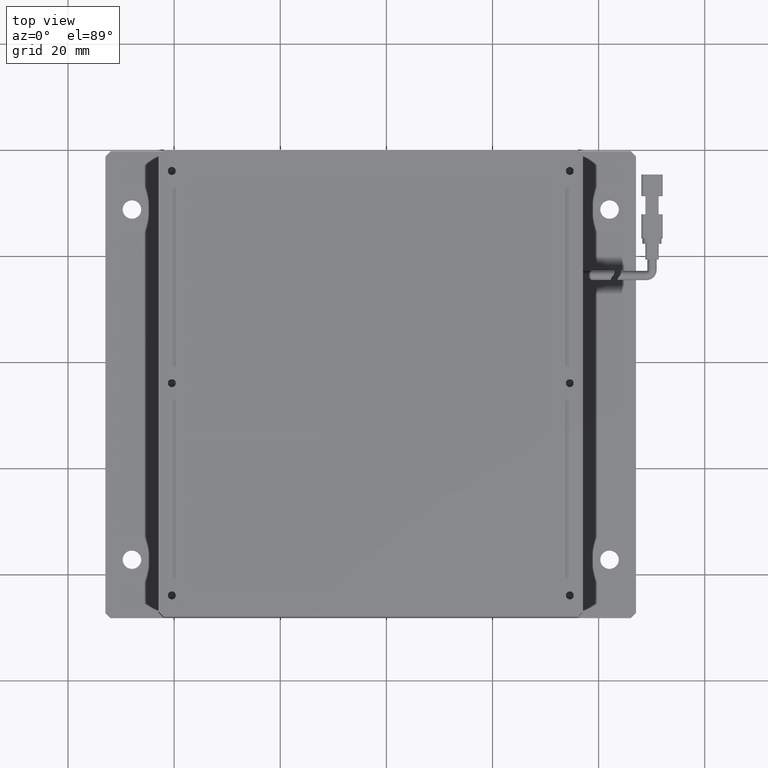
[diagram: clean part render]
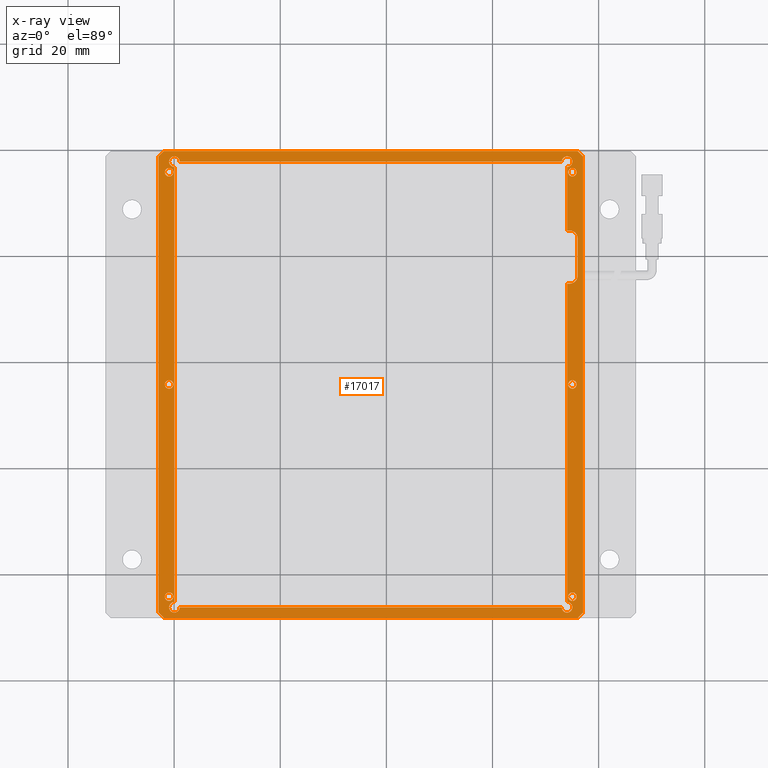
[diagram: x-ray — body ghosted, one internal face saturated and labeled with its STEP entity id]
A machine part, top view, then the same camera in x-ray: the body is ghosted and one INTERNAL B-rep face — a face not visible from any outside direction — is saturated and labeled: STEP entity #17017.
In plain terms, the highlighted planar face has unit normal (0, 0, -1).
Its self-contained STEP definition (entity closure, byte-faithful):
#6 = DIRECTION ( 'NONE',  ( -1.000000000000000000, 0.0000000000000000000, 0.0000000000000000000 ) ) ;
#13 = DIRECTION ( 'NONE',  ( 0.7071067811865408000, 0.7071067811865541200, 0.0000000000000000000 ) ) ;
#37 = ORIENTED_EDGE ( 'NONE', *, *, #16282, .T. ) ;
#207 = ORIENTED_EDGE ( 'NONE', *, *, #8562, .T. ) ;
#321 = AXIS2_PLACEMENT_3D ( 'NONE', #14789, #6678, #16154 ) ;
#440 = DIRECTION ( 'NONE',  ( -0.7071067811865524600, -0.7071067811865426900, 0.0000000000000000000 ) ) ;
#561 = FACE_BOUND ( 'NONE', #1685, .T. ) ;
#587 = EDGE_CURVE ( 'NONE', #7370, #11511, #15898, .T. ) ;
#638 = VERTEX_POINT ( 'NONE', #13165 ) ;
#668 = VERTEX_POINT ( 'NONE', #9595 ) ;
#693 = CARTESIAN_POINT ( 'NONE',  ( -20.94768995799924800, 35.79992363497524400, -4.547577592273199800E-012 ) ) ;
#763 = FACE_BOUND ( 'NONE', #10065, .T. ) ;
#903 = CARTESIAN_POINT ( 'NONE',  ( 55.85231004200074500, 35.79992363497521500, -4.547577592273199800E-012 ) ) ;
#965 = CARTESIAN_POINT ( 'NONE',  ( 55.05231004200074800, -4.200076365024778500, -4.547577592273199800E-012 ) ) ;
#984 = AXIS2_PLACEMENT_3D ( 'NONE', #2488, #12103, #3881 ) ;
#1182 = VERTEX_POINT ( 'NONE', #8970 ) ;
#1201 = EDGE_LOOP ( 'NONE', ( #13342, #13288 ) ) ;
#1450 = ORIENTED_EDGE ( 'NONE', *, *, #15912, .T. ) ;
#1503 = EDGE_CURVE ( 'NONE', #3686, #10969, #13608, .T. ) ;
#1515 = CIRCLE ( 'NONE', #13236, 0.7999999999999986000 ) ;
#1556 = DIRECTION ( 'NONE',  ( 1.000000000000000000, 0.0000000000000000000, 0.0000000000000000000 ) ) ;
#1558 = EDGE_CURVE ( 'NONE', #9867, #17127, #8316, .T. ) ;
#1561 = LINE ( 'NONE', #8660, #8903 ) ;
#1590 = CARTESIAN_POINT ( 'NONE',  ( -18.94768995799928700, 37.79992363497524400, -4.547577592273199800E-012 ) ) ;
#1629 = ORIENTED_EDGE ( 'NONE', *, *, #15548, .T. ) ;
#1654 = CARTESIAN_POINT ( 'NONE',  ( -19.94768995799928700, 37.79992363497522900, -4.547577592273199800E-012 ) ) ;
#1685 = EDGE_LOOP ( 'NONE', ( #16997, #6338 ) ) ;
#1730 = DIRECTION ( 'NONE',  ( -1.000000000000000000, 0.0000000000000000000, 0.0000000000000000000 ) ) ;
#1746 = AXIS2_PLACEMENT_3D ( 'NONE', #4868, #14387, #6286 ) ;
#1749 = LINE ( 'NONE', #13462, #8224 ) ;
#1873 = CARTESIAN_POINT ( 'NONE',  ( 57.05231004200075500, -47.20007636502479200, -4.547577592273199800E-012 ) ) ;
#2075 = DIRECTION ( 'NONE',  ( 0.0000000000000000000, 0.0000000000000000000, 1.000000000000000000 ) ) ;
#2088 = VERTEX_POINT ( 'NONE', #9095 ) ;
#2206 = EDGE_CURVE ( 'NONE', #17734, #9437, #16538, .T. ) ;
#2221 = CARTESIAN_POINT ( 'NONE',  ( 54.05231004200079100, 14.79992363497521200, -4.547577592273199800E-012 ) ) ;
#2231 = ORIENTED_EDGE ( 'NONE', *, *, #5478, .T. ) ;
#2235 = CARTESIAN_POINT ( 'NONE',  ( 54.55231004200074800, 24.79992363497521900, -4.547577592273199800E-012 ) ) ;
#2236 = CARTESIAN_POINT ( 'NONE',  ( 55.05231004200074800, -4.200076365024778500, -4.547577592273199800E-012 ) ) ;
#2261 = ORIENTED_EDGE ( 'NONE', *, *, #8304, .T. ) ;
#2352 = DIRECTION ( 'NONE',  ( -1.000000000000000000, 0.0000000000000000000, 0.0000000000000000000 ) ) ;
#2488 = CARTESIAN_POINT ( 'NONE',  ( -19.94768995799928700, 37.79992363497522900, -4.547577592273199800E-012 ) ) ;
#2519 = DIRECTION ( 'NONE',  ( -0.0000000000000000000, -1.000000000000000000, -0.0000000000000000000 ) ) ;
#2544 = EDGE_CURVE ( 'NONE', #3023, #6639, #9692, .T. ) ;
#2595 = CIRCLE ( 'NONE', #321, 1.500000000000001300 ) ;
#2679 = CARTESIAN_POINT ( 'NONE',  ( -19.94768995799928700, -45.20007636502478500, -4.547577592273199800E-012 ) ) ;
#2836 = VERTEX_POINT ( 'NONE', #7496 ) ;
#2903 = EDGE_CURVE ( 'NONE', #9688, #6274, #11561, .T. ) ;
#2958 = CARTESIAN_POINT ( 'NONE',  ( 56.05231004200076200, 39.79992363497522200, -4.548878634880182400E-012 ) ) ;
#3023 = VERTEX_POINT ( 'NONE', #16414 ) ;
#3026 = DIRECTION ( 'NONE',  ( -1.000000000000000000, 0.0000000000000000000, 0.0000000000000000000 ) ) ;
#3211 = LINE ( 'NONE', #3660, #6477 ) ;
#3341 = LINE ( 'NONE', #17768, #6600 ) ;
#3352 = EDGE_CURVE ( 'NONE', #1182, #638, #10694, .T. ) ;
#3382 = DIRECTION ( 'NONE',  ( -1.000000000000000000, 0.0000000000000000000, -0.0000000000000000000 ) ) ;
#3455 = LINE ( 'NONE', #1873, #15844 ) ;
#3482 = DIRECTION ( 'NONE',  ( 1.000000000000000000, -0.0000000000000000000, 0.0000000000000000000 ) ) ;
#3582 = VERTEX_POINT ( 'NONE', #15100 ) ;
#3622 = EDGE_CURVE ( 'NONE', #12047, #2836, #15523, .T. ) ;
#3660 = CARTESIAN_POINT ( 'NONE',  ( 54.05231004200079100, 39.79992363497522200, -4.547577592273199800E-012 ) ) ;
#3686 = VERTEX_POINT ( 'NONE', #2958 ) ;
#3841 = DIRECTION ( 'NONE',  ( -1.000000000000000000, 0.0000000000000000000, 0.0000000000000000000 ) ) ;
#3881 = DIRECTION ( 'NONE',  ( -1.000000000000000000, 0.0000000000000000000, 0.0000000000000000000 ) ) ;
#3891 = DIRECTION ( 'NONE',  ( 0.0000000000000000000, 0.0000000000000000000, 1.000000000000000000 ) ) ;
#3902 = CARTESIAN_POINT ( 'NONE',  ( -20.94768995799924800, -44.20007636502477800, -4.547577592273199800E-012 ) ) ;
#4087 = VERTEX_POINT ( 'NONE', #9102 ) ;
#4135 = CARTESIAN_POINT ( 'NONE',  ( 56.05231004200073400, -48.20007636502477800, -4.550179677487165000E-012 ) ) ;
#4230 = AXIS2_PLACEMENT_3D ( 'NONE', #1654, #11246, #3026 ) ;
#4260 = FACE_BOUND ( 'NONE', #6866, .T. ) ;
#4272 = CARTESIAN_POINT ( 'NONE',  ( -22.94768995799924500, -47.20007636502478500, -4.550179677487165000E-012 ) ) ;
#4363 = AXIS2_PLACEMENT_3D ( 'NONE', #5155, #14650, #6543 ) ;
#4449 = FACE_BOUND ( 'NONE', #10259, .T. ) ;
#4498 = EDGE_CURVE ( 'NONE', #8258, #7416, #1561, .T. ) ;
#4577 = ORIENTED_EDGE ( 'NONE', *, *, #13868, .T. ) ;
#4703 = AXIS2_PLACEMENT_3D ( 'NONE', #6835, #16304, #8206 ) ;
#4716 = LINE ( 'NONE', #17191, #11534 ) ;
#4752 = ORIENTED_EDGE ( 'NONE', *, *, #587, .T. ) ;
#4868 = CARTESIAN_POINT ( 'NONE',  ( -19.94768995799928700, -46.20007636502478500, -4.547577592273199800E-012 ) ) ;
#5105 = DIRECTION ( 'NONE',  ( 0.0000000000000000000, 0.0000000000000000000, 1.000000000000000000 ) ) ;
#5128 = EDGE_CURVE ( 'NONE', #10922, #13178, #9700, .T. ) ;
#5155 = CARTESIAN_POINT ( 'NONE',  ( 55.05231004200074800, 35.79992363497521500, -4.547577592273199800E-012 ) ) ;
#5164 = DIRECTION ( 'NONE',  ( 0.0000000000000000000, 0.0000000000000000000, 1.000000000000000000 ) ) ;
#5180 = VECTOR ( 'NONE', #1556, 1000.000000000000000 ) ;
#5442 = EDGE_CURVE ( 'NONE', #10620, #8994, #13282, .T. ) ;
#5466 = VERTEX_POINT ( 'NONE', #9318 ) ;
#5478 = EDGE_CURVE ( 'NONE', #4087, #9867, #12861, .T. ) ;
#5498 = DIRECTION ( 'NONE',  ( -1.000000000000000000, -6.938893903907222100E-015, 0.0000000000000000000 ) ) ;
#5625 = DIRECTION ( 'NONE',  ( 0.0000000000000000000, 0.0000000000000000000, 1.000000000000000000 ) ) ;
#5735 = CIRCLE ( 'NONE', #17704, 0.7999999999999951600 ) ;
#5778 = DIRECTION ( 'NONE',  ( 0.0000000000000000000, 0.0000000000000000000, 1.000000000000000000 ) ) ;
#5867 = DIRECTION ( 'NONE',  ( -0.0000000000000000000, 1.000000000000000000, 0.0000000000000000000 ) ) ;
#5976 = ORIENTED_EDGE ( 'NONE', *, *, #3622, .T. ) ;
#6274 = VERTEX_POINT ( 'NONE', #11501 ) ;
#6286 = DIRECTION ( 'NONE',  ( -1.000000000000000000, 0.0000000000000000000, 0.0000000000000000000 ) ) ;
#6335 = LINE ( 'NONE', #8612, #9930 ) ;
#6338 = ORIENTED_EDGE ( 'NONE', *, *, #8012, .T. ) ;
#6411 = EDGE_CURVE ( 'NONE', #12683, #2088, #14686, .T. ) ;
#6448 = DIRECTION ( 'NONE',  ( 0.0000000000000000000, 0.0000000000000000000, 1.000000000000000000 ) ) ;
#6477 = VECTOR ( 'NONE', #9149, 1000.000000000000000 ) ;
#6479 = EDGE_CURVE ( 'NONE', #17167, #668, #16174, .T. ) ;
#6511 = VECTOR ( 'NONE', #3382, 1000.000000000000000 ) ;
#6543 = DIRECTION ( 'NONE',  ( -1.000000000000000000, 0.0000000000000000000, 0.0000000000000000000 ) ) ;
#6600 = VECTOR ( 'NONE', #13, 1000.000000000000100 ) ;
#6621 = CIRCLE ( 'NONE', #10478, 1.000000000000000900 ) ;
#6639 = VERTEX_POINT ( 'NONE', #1590 ) ;
#6678 = DIRECTION ( 'NONE',  ( 0.0000000000000000000, 0.0000000000000000000, 1.000000000000000000 ) ) ;
#6768 = ORIENTED_EDGE ( 'NONE', *, *, #1558, .T. ) ;
#6835 = CARTESIAN_POINT ( 'NONE',  ( 54.55231004200074800, 16.29992363497521200, -4.547577592273199800E-012 ) ) ;
#6866 = EDGE_LOOP ( 'NONE', ( #9486, #15218 ) ) ;
#6947 = EDGE_CURVE ( 'NONE', #13178, #10922, #16136, .T. ) ;
#6950 = EDGE_CURVE ( 'NONE', #9437, #17734, #5735, .T. ) ;
#7112 = ORIENTED_EDGE ( 'NONE', *, *, #15972, .T. ) ;
#7370 = VERTEX_POINT ( 'NONE', #7563 ) ;
#7416 = VERTEX_POINT ( 'NONE', #11754 ) ;
#7496 = CARTESIAN_POINT ( 'NONE',  ( 54.05231004200079100, -45.20007636502478500, -4.547577592273199800E-012 ) ) ;
#7563 = CARTESIAN_POINT ( 'NONE',  ( 56.05231004200074800, 16.29992363497521200, -4.547577592273199800E-012 ) ) ;
#7572 = EDGE_CURVE ( 'NONE', #8994, #14546, #1749, .T. ) ;
#7620 = ORIENTED_EDGE ( 'NONE', *, *, #2544, .T. ) ;
#7728 = EDGE_CURVE ( 'NONE', #12373, #17167, #3455, .T. ) ;
#7775 = VECTOR ( 'NONE', #10729, 1000.000000000000000 ) ;
#7780 = CARTESIAN_POINT ( 'NONE',  ( -20.94768995799924800, -44.20007636502477800, -4.547577592273199800E-012 ) ) ;
#7805 = CARTESIAN_POINT ( 'NONE',  ( -19.94768995799928700, -46.20007636502478500, -4.547577592273199800E-012 ) ) ;
#7808 = CIRCLE ( 'NONE', #4703, 1.500000000000001300 ) ;
#7857 = PLANE ( 'NONE',  #12225 ) ;
#7961 = FACE_BOUND ( 'NONE', #1201, .T. ) ;
#7965 = CARTESIAN_POINT ( 'NONE',  ( -20.94768995799924800, -4.200076365024778500, -4.547577592273199800E-012 ) ) ;
#7981 = CARTESIAN_POINT ( 'NONE',  ( -22.94768995799924800, 39.79992363497522200, -4.547577592273199800E-012 ) ) ;
#8012 = EDGE_CURVE ( 'NONE', #16520, #14777, #11570, .T. ) ;
#8075 = CIRCLE ( 'NONE', #16588, 0.7999999999999986000 ) ;
#8090 = DIRECTION ( 'NONE',  ( 0.0000000000000000000, 0.0000000000000000000, 1.000000000000000000 ) ) ;
#8106 = CIRCLE ( 'NONE', #1746, 0.9999999999999974500 ) ;
#8206 = DIRECTION ( 'NONE',  ( 1.000000000000000000, 0.0000000000000000000, 0.0000000000000000000 ) ) ;
#8224 = VECTOR ( 'NONE', #9454, 1000.000000000000000 ) ;
#8258 = VERTEX_POINT ( 'NONE', #4272 ) ;
#8289 = AXIS2_PLACEMENT_3D ( 'NONE', #7965, #17419, #9317 ) ;
#8304 = EDGE_CURVE ( 'NONE', #12377, #5466, #8817, .T. ) ;
#8316 = LINE ( 'NONE', #10353, #11464 ) ;
#8352 = DIRECTION ( 'NONE',  ( 0.0000000000000000000, 0.0000000000000000000, 1.000000000000000000 ) ) ;
#8420 = CARTESIAN_POINT ( 'NONE',  ( 53.05231004200079100, -46.20007636502479200, -4.547577592273199800E-012 ) ) ;
#8540 = ORIENTED_EDGE ( 'NONE', *, *, #6479, .T. ) ;
#8562 = EDGE_CURVE ( 'NONE', #2088, #12047, #4716, .T. ) ;
#8612 = CARTESIAN_POINT ( 'NONE',  ( 57.05231004200075500, -48.20007636502477800, -4.547577592273199800E-012 ) ) ;
#8640 = DIRECTION ( 'NONE',  ( -0.7071067811865474600, 0.7071067811865474600, 0.0000000000000000000 ) ) ;
#8660 = CARTESIAN_POINT ( 'NONE',  ( -22.94768995799924800, -48.20007636502477800, -4.547577592273199800E-012 ) ) ;
#8670 = VECTOR ( 'NONE', #14745, 1000.000000000000000 ) ;
#8793 = LINE ( 'NONE', #15381, #11986 ) ;
#8817 = LINE ( 'NONE', #15233, #5180 ) ;
#8859 = CARTESIAN_POINT ( 'NONE',  ( -21.94768995799926300, 39.79992363497522200, -4.550179677487165000E-012 ) ) ;
#8903 = VECTOR ( 'NONE', #5867, 1000.000000000000000 ) ;
#8970 = CARTESIAN_POINT ( 'NONE',  ( -21.74768995799924600, -44.20007636502477800, -4.547577592273199800E-012 ) ) ;
#8994 = VERTEX_POINT ( 'NONE', #11598 ) ;
#9095 = CARTESIAN_POINT ( 'NONE',  ( -18.94768995799929100, -46.20007636502479900, -4.547577592273199800E-012 ) ) ;
#9102 = CARTESIAN_POINT ( 'NONE',  ( -20.94768995799928700, 37.79992363497522900, -4.547577592273199800E-012 ) ) ;
#9138 = DIRECTION ( 'NONE',  ( -1.000000000000000000, 0.0000000000000000000, 0.0000000000000000000 ) ) ;
#9149 = DIRECTION ( 'NONE',  ( 0.0000000000000000000, 1.000000000000000000, 0.0000000000000000000 ) ) ;
#9164 = DIRECTION ( 'NONE',  ( -1.000000000000000000, 0.0000000000000000000, 0.0000000000000000000 ) ) ;
#9317 = DIRECTION ( 'NONE',  ( -1.000000000000000000, 0.0000000000000000000, 0.0000000000000000000 ) ) ;
#9318 = CARTESIAN_POINT ( 'NONE',  ( 54.55231004200074800, 14.79992363497521200, -4.547577592273199800E-012 ) ) ;
#9332 = DIRECTION ( 'NONE',  ( -1.000000000000000000, 0.0000000000000000000, -0.0000000000000000000 ) ) ;
#9404 = VECTOR ( 'NONE', #17653, 1000.000000000000000 ) ;
#9437 = VERTEX_POINT ( 'NONE', #13439 ) ;
#9454 = DIRECTION ( 'NONE',  ( 0.0000000000000000000, 1.000000000000000000, 0.0000000000000000000 ) ) ;
#9486 = ORIENTED_EDGE ( 'NONE', *, *, #6947, .T. ) ;
#9499 = CARTESIAN_POINT ( 'NONE',  ( -22.94768995799924800, 37.79992363497522900, -4.547577592273199800E-012 ) ) ;
#9595 = CARTESIAN_POINT ( 'NONE',  ( -21.94768995799925200, -48.20007636502477800, -4.548228113576691100E-012 ) ) ;
#9608 = EDGE_CURVE ( 'NONE', #7416, #16908, #3341, .T. ) ;
#9688 = VERTEX_POINT ( 'NONE', #9931 ) ;
#9692 = LINE ( 'NONE', #9499, #6511 ) ;
#9700 = CIRCLE ( 'NONE', #10878, 0.7999999999999951600 ) ;
#9710 = CARTESIAN_POINT ( 'NONE',  ( 54.05231004200079100, 36.79992363497522900, -4.547577592273199800E-012 ) ) ;
#9744 = AXIS2_PLACEMENT_3D ( 'NONE', #3902, #3891, #3841 ) ;
#9867 = VERTEX_POINT ( 'NONE', #11637 ) ;
#9930 = VECTOR ( 'NONE', #16716, 1000.000000000000000 ) ;
#9931 = CARTESIAN_POINT ( 'NONE',  ( -20.14768995799924800, 35.79992363497524400, -4.547577592273199800E-012 ) ) ;
#10009 = ORIENTED_EDGE ( 'NONE', *, *, #11718, .T. ) ;
#10055 = ORIENTED_EDGE ( 'NONE', *, *, #10918, .T. ) ;
#10065 = EDGE_LOOP ( 'NONE', ( #11390, #7112 ) ) ;
#10191 = EDGE_CURVE ( 'NONE', #10969, #12373, #6335, .T. ) ;
#10228 = ORIENTED_EDGE ( 'NONE', *, *, #1503, .T. ) ;
#10259 = EDGE_LOOP ( 'NONE', ( #10055, #14458 ) ) ;
#10353 = CARTESIAN_POINT ( 'NONE',  ( -19.94768995799928700, 39.79992363497522200, -4.547577592273199800E-012 ) ) ;
#10412 = CARTESIAN_POINT ( 'NONE',  ( 57.05231004200074100, -47.20007636502480600, -4.548228113576691100E-012 ) ) ;
#10478 = AXIS2_PLACEMENT_3D ( 'NONE', #13251, #5105, #14607 ) ;
#10592 = DIRECTION ( 'NONE',  ( 0.0000000000000000000, 0.0000000000000000000, 1.000000000000000000 ) ) ;
#10620 = VERTEX_POINT ( 'NONE', #2235 ) ;
#10621 = EDGE_CURVE ( 'NONE', #14777, #16520, #10782, .T. ) ;
#10694 = CIRCLE ( 'NONE', #9744, 0.7999999999999986000 ) ;
#10729 = DIRECTION ( 'NONE',  ( 1.000000000000000000, 0.0000000000000000000, 0.0000000000000000000 ) ) ;
#10766 = EDGE_LOOP ( 'NONE', ( #6768, #15982, #14429, #207, #5976, #1450, #2261, #1629, #4752, #11363, #14302, #15337, #4577, #7620, #37, #2231 ) ) ;
#10782 = CIRCLE ( 'NONE', #12667, 0.7999999999999951600 ) ;
#10787 = EDGE_CURVE ( 'NONE', #11511, #10620, #2595, .T. ) ;
#10825 = ORIENTED_EDGE ( 'NONE', *, *, #16309, .T. ) ;
#10878 = AXIS2_PLACEMENT_3D ( 'NONE', #2236, #2075, #1730 ) ;
#10918 = EDGE_CURVE ( 'NONE', #6274, #9688, #1515, .T. ) ;
#10922 = VERTEX_POINT ( 'NONE', #15016 ) ;
#10969 = VERTEX_POINT ( 'NONE', #11125 ) ;
#11084 = CARTESIAN_POINT ( 'NONE',  ( 54.05231004200079100, -46.20007636502478500, -4.547577592273199800E-012 ) ) ;
#11125 = CARTESIAN_POINT ( 'NONE',  ( 57.05231004200075500, 38.79992363497521500, -4.550179677487165000E-012 ) ) ;
#11164 = ORIENTED_EDGE ( 'NONE', *, *, #9608, .T. ) ;
#11210 = DIRECTION ( 'NONE',  ( -1.000000000000000000, 0.0000000000000000000, 0.0000000000000000000 ) ) ;
#11246 = DIRECTION ( 'NONE',  ( 0.0000000000000000000, 0.0000000000000000000, 1.000000000000000000 ) ) ;
#11363 = ORIENTED_EDGE ( 'NONE', *, *, #10787, .T. ) ;
#11387 = ORIENTED_EDGE ( 'NONE', *, *, #11889, .T. ) ;
#11390 = ORIENTED_EDGE ( 'NONE', *, *, #13606, .T. ) ;
#11427 = AXIS2_PLACEMENT_3D ( 'NONE', #7805, #17263, #9164 ) ;
#11464 = VECTOR ( 'NONE', #2519, 1000.000000000000000 ) ;
#11501 = CARTESIAN_POINT ( 'NONE',  ( -21.74768995799924600, 35.79992363497524400, -4.547577592273199800E-012 ) ) ;
#11511 = VERTEX_POINT ( 'NONE', #14047 ) ;
#11521 = CARTESIAN_POINT ( 'NONE',  ( 54.25231004200075800, 35.79992363497521500, -4.547577592273199800E-012 ) ) ;
#11531 = FACE_OUTER_BOUND ( 'NONE', #15932, .T. ) ;
#11532 = AXIS2_PLACEMENT_3D ( 'NONE', #7780, #17238, #9138 ) ;
#11534 = VECTOR ( 'NONE', #3482, 1000.000000000000000 ) ;
#11561 = CIRCLE ( 'NONE', #14482, 0.7999999999999986000 ) ;
#11563 = CIRCLE ( 'NONE', #11532, 0.7999999999999986000 ) ;
#11570 = CIRCLE ( 'NONE', #4363, 0.7999999999999951600 ) ;
#11598 = CARTESIAN_POINT ( 'NONE',  ( 54.05231004200079100, 24.79992363497521900, -4.547577592273199800E-012 ) ) ;
#11637 = CARTESIAN_POINT ( 'NONE',  ( -19.94768995799928700, 36.79992363497522900, -4.547577592273199800E-012 ) ) ;
#11714 = VERTEX_POINT ( 'NONE', #14522 ) ;
#11718 = EDGE_CURVE ( 'NONE', #638, #1182, #11563, .T. ) ;
#11754 = CARTESIAN_POINT ( 'NONE',  ( -22.94768995799925200, 38.79992363497521500, -4.548228113576691100E-012 ) ) ;
#11889 = EDGE_CURVE ( 'NONE', #16908, #3686, #14943, .T. ) ;
#11922 = CARTESIAN_POINT ( 'NONE',  ( 55.05231004200074800, -44.20007636502477800, -4.547577592273199800E-012 ) ) ;
#11947 = DIRECTION ( 'NONE',  ( 0.0000000000000000000, 0.0000000000000000000, 1.000000000000000000 ) ) ;
#11986 = VECTOR ( 'NONE', #8640, 1000.000000000000100 ) ;
#11989 = CARTESIAN_POINT ( 'NONE',  ( 56.05231004200074800, 24.79992363497521900, -4.547577592273199800E-012 ) ) ;
#12004 = DIRECTION ( 'NONE',  ( -1.000000000000000000, 0.0000000000000000000, 0.0000000000000000000 ) ) ;
#12047 = VERTEX_POINT ( 'NONE', #8420 ) ;
#12103 = DIRECTION ( 'NONE',  ( 0.0000000000000000000, 0.0000000000000000000, 1.000000000000000000 ) ) ;
#12225 = AXIS2_PLACEMENT_3D ( 'NONE', #7981, #17431, #9332 ) ;
#12373 = VERTEX_POINT ( 'NONE', #10412 ) ;
#12377 = VERTEX_POINT ( 'NONE', #2221 ) ;
#12667 = AXIS2_PLACEMENT_3D ( 'NONE', #14560, #6448, #15935 ) ;
#12683 = VERTEX_POINT ( 'NONE', #15533 ) ;
#12789 = AXIS2_PLACEMENT_3D ( 'NONE', #11922, #11947, #12004 ) ;
#12861 = CIRCLE ( 'NONE', #984, 0.9999999999999974500 ) ;
#12913 = ORIENTED_EDGE ( 'NONE', *, *, #7728, .T. ) ;
#13165 = CARTESIAN_POINT ( 'NONE',  ( -20.14768995799924800, -44.20007636502477800, -4.547577592273199800E-012 ) ) ;
#13178 = VERTEX_POINT ( 'NONE', #17054 ) ;
#13191 = VECTOR ( 'NONE', #15740, 1000.000000000000100 ) ;
#13236 = AXIS2_PLACEMENT_3D ( 'NONE', #16443, #8352, #6 ) ;
#13251 = CARTESIAN_POINT ( 'NONE',  ( 54.05231004200079100, 37.79992363497522900, -4.547577592273199800E-012 ) ) ;
#13282 = LINE ( 'NONE', #11989, #16451 ) ;
#13288 = ORIENTED_EDGE ( 'NONE', *, *, #2206, .T. ) ;
#13309 = CARTESIAN_POINT ( 'NONE',  ( 55.05231004200074800, -44.20007636502477800, -4.547577592273199800E-012 ) ) ;
#13342 = ORIENTED_EDGE ( 'NONE', *, *, #6950, .T. ) ;
#13439 = CARTESIAN_POINT ( 'NONE',  ( 54.25231004200075800, -44.20007636502477800, -4.547577592273199800E-012 ) ) ;
#13462 = CARTESIAN_POINT ( 'NONE',  ( 54.05231004200079100, 39.79992363497522200, -4.547577592273199800E-012 ) ) ;
#13501 = CARTESIAN_POINT ( 'NONE',  ( -22.94768995799924800, 39.79992363497522200, -4.547577592273199800E-012 ) ) ;
#13506 = CARTESIAN_POINT ( 'NONE',  ( 55.85231004200074500, -44.20007636502477800, -4.547577592273199800E-012 ) ) ;
#13606 = EDGE_CURVE ( 'NONE', #11714, #3582, #8075, .T. ) ;
#13608 = LINE ( 'NONE', #15122, #13191 ) ;
#13617 = AXIS2_PLACEMENT_3D ( 'NONE', #11084, #5625, #5498 ) ;
#13649 = EDGE_LOOP ( 'NONE', ( #16351, #10009 ) ) ;
#13868 = EDGE_CURVE ( 'NONE', #14546, #3023, #6621, .T. ) ;
#13899 = CARTESIAN_POINT ( 'NONE',  ( -20.94768995799924800, -4.200076365024778500, -4.547577592273199800E-012 ) ) ;
#14047 = CARTESIAN_POINT ( 'NONE',  ( 56.05231004200074800, 23.29992363497523300, -4.547577592273199800E-012 ) ) ;
#14298 = EDGE_CURVE ( 'NONE', #17127, #12683, #8106, .T. ) ;
#14302 = ORIENTED_EDGE ( 'NONE', *, *, #5442, .T. ) ;
#14387 = DIRECTION ( 'NONE',  ( 0.0000000000000000000, 0.0000000000000000000, 1.000000000000000000 ) ) ;
#14429 = ORIENTED_EDGE ( 'NONE', *, *, #6411, .T. ) ;
#14458 = ORIENTED_EDGE ( 'NONE', *, *, #2903, .T. ) ;
#14482 = AXIS2_PLACEMENT_3D ( 'NONE', #693, #8090, #11210 ) ;
#14522 = CARTESIAN_POINT ( 'NONE',  ( -21.74768995799924600, -4.200076365024778500, -4.547577592273199800E-012 ) ) ;
#14546 = VERTEX_POINT ( 'NONE', #9710 ) ;
#14557 = ORIENTED_EDGE ( 'NONE', *, *, #4498, .T. ) ;
#14560 = CARTESIAN_POINT ( 'NONE',  ( 55.05231004200074800, 35.79992363497521500, -4.547577592273199800E-012 ) ) ;
#14607 = DIRECTION ( 'NONE',  ( -1.000000000000000000, 0.0000000000000000000, 0.0000000000000000000 ) ) ;
#14650 = DIRECTION ( 'NONE',  ( 0.0000000000000000000, 0.0000000000000000000, 1.000000000000000000 ) ) ;
#14659 = DIRECTION ( 'NONE',  ( -1.000000000000000000, 0.0000000000000000000, 0.0000000000000000000 ) ) ;
#14686 = CIRCLE ( 'NONE', #11427, 0.9999999999999974500 ) ;
#14687 = DIRECTION ( 'NONE',  ( -1.000000000000000000, 0.0000000000000000000, -0.0000000000000000000 ) ) ;
#14713 = FACE_BOUND ( 'NONE', #10766, .T. ) ;
#14745 = DIRECTION ( 'NONE',  ( 0.0000000000000000000, 1.000000000000000000, 0.0000000000000000000 ) ) ;
#14777 = VERTEX_POINT ( 'NONE', #11521 ) ;
#14789 = CARTESIAN_POINT ( 'NONE',  ( 54.55231004200074800, 23.29992363497523300, -4.547577592273199800E-012 ) ) ;
#14805 = ORIENTED_EDGE ( 'NONE', *, *, #10191, .T. ) ;
#14943 = LINE ( 'NONE', #13501, #7775 ) ;
#14971 = CARTESIAN_POINT ( 'NONE',  ( 56.05231004200074800, 39.79992363497522200, -4.547577592273199800E-012 ) ) ;
#15016 = CARTESIAN_POINT ( 'NONE',  ( 55.85231004200074500, -4.200076365024778500, -4.547577592273199800E-012 ) ) ;
#15100 = CARTESIAN_POINT ( 'NONE',  ( -20.14768995799924800, -4.200076365024778500, -4.547577592273199800E-012 ) ) ;
#15122 = CARTESIAN_POINT ( 'NONE',  ( 56.05231004200076200, 39.79992363497522200, -4.547577592273199800E-012 ) ) ;
#15136 = FACE_BOUND ( 'NONE', #13649, .T. ) ;
#15218 = ORIENTED_EDGE ( 'NONE', *, *, #5128, .T. ) ;
#15233 = CARTESIAN_POINT ( 'NONE',  ( 56.05231004200074800, 14.79992363497521200, -4.547577592273199800E-012 ) ) ;
#15256 = DIRECTION ( 'NONE',  ( -1.000000000000000000, 0.0000000000000000000, 0.0000000000000000000 ) ) ;
#15337 = ORIENTED_EDGE ( 'NONE', *, *, #7572, .T. ) ;
#15381 = CARTESIAN_POINT ( 'NONE',  ( -21.94768995799924800, -48.20007636502477800, -4.547577592273199800E-012 ) ) ;
#15523 = CIRCLE ( 'NONE', #13617, 1.000000000000000900 ) ;
#15533 = CARTESIAN_POINT ( 'NONE',  ( -20.94768995799928700, -46.20007636502478500, -4.547577592273199800E-012 ) ) ;
#15548 = EDGE_CURVE ( 'NONE', #5466, #7370, #7808, .T. ) ;
#15576 = CIRCLE ( 'NONE', #8289, 0.7999999999999986000 ) ;
#15740 = DIRECTION ( 'NONE',  ( 0.7071067811865474600, -0.7071067811865474600, 0.0000000000000000000 ) ) ;
#15844 = VECTOR ( 'NONE', #440, 1000.000000000000000 ) ;
#15898 = LINE ( 'NONE', #14971, #8670 ) ;
#15912 = EDGE_CURVE ( 'NONE', #2836, #12377, #3211, .T. ) ;
#15932 = EDGE_LOOP ( 'NONE', ( #8540, #10825, #14557, #11164, #11387, #10228, #14805, #12913 ) ) ;
#15935 = DIRECTION ( 'NONE',  ( -1.000000000000000000, 0.0000000000000000000, 0.0000000000000000000 ) ) ;
#15972 = EDGE_CURVE ( 'NONE', #3582, #11714, #15576, .T. ) ;
#15982 = ORIENTED_EDGE ( 'NONE', *, *, #14298, .T. ) ;
#16136 = CIRCLE ( 'NONE', #16781, 0.7999999999999951600 ) ;
#16154 = DIRECTION ( 'NONE',  ( 1.000000000000000000, 0.0000000000000000000, 0.0000000000000000000 ) ) ;
#16174 = LINE ( 'NONE', #16280, #9404 ) ;
#16280 = CARTESIAN_POINT ( 'NONE',  ( -22.94768995799924800, -48.20007636502477800, -4.547577592273199800E-012 ) ) ;
#16282 = EDGE_CURVE ( 'NONE', #6639, #4087, #17274, .T. ) ;
#16304 = DIRECTION ( 'NONE',  ( 0.0000000000000000000, 0.0000000000000000000, 1.000000000000000000 ) ) ;
#16309 = EDGE_CURVE ( 'NONE', #668, #8258, #8793, .T. ) ;
#16351 = ORIENTED_EDGE ( 'NONE', *, *, #3352, .T. ) ;
#16414 = CARTESIAN_POINT ( 'NONE',  ( 53.05231004200079100, 37.79992363497522900, -4.547577592273199800E-012 ) ) ;
#16443 = CARTESIAN_POINT ( 'NONE',  ( -20.94768995799924800, 35.79992363497524400, -4.547577592273199800E-012 ) ) ;
#16451 = VECTOR ( 'NONE', #14687, 1000.000000000000000 ) ;
#16520 = VERTEX_POINT ( 'NONE', #903 ) ;
#16538 = CIRCLE ( 'NONE', #12789, 0.7999999999999951600 ) ;
#16588 = AXIS2_PLACEMENT_3D ( 'NONE', #13899, #5778, #15256 ) ;
#16716 = DIRECTION ( 'NONE',  ( -0.0000000000000000000, -1.000000000000000000, 0.0000000000000000000 ) ) ;
#16781 = AXIS2_PLACEMENT_3D ( 'NONE', #965, #10592, #2352 ) ;
#16908 = VERTEX_POINT ( 'NONE', #8859 ) ;
#16997 = ORIENTED_EDGE ( 'NONE', *, *, #10621, .T. ) ;
#17017 = ADVANCED_FACE ( 'NONE', ( #11531, #15136, #763, #4449, #7961, #4260, #561, #14713 ), #7857, .T. ) ;
#17054 = CARTESIAN_POINT ( 'NONE',  ( 54.25231004200075800, -4.200076365024778500, -4.547577592273199800E-012 ) ) ;
#17127 = VERTEX_POINT ( 'NONE', #2679 ) ;
#17167 = VERTEX_POINT ( 'NONE', #4135 ) ;
#17191 = CARTESIAN_POINT ( 'NONE',  ( -22.94768995799924800, -46.20007636502479900, -4.547577592273199800E-012 ) ) ;
#17238 = DIRECTION ( 'NONE',  ( 0.0000000000000000000, 0.0000000000000000000, 1.000000000000000000 ) ) ;
#17263 = DIRECTION ( 'NONE',  ( 0.0000000000000000000, 0.0000000000000000000, 1.000000000000000000 ) ) ;
#17274 = CIRCLE ( 'NONE', #4230, 0.9999999999999974500 ) ;
#17419 = DIRECTION ( 'NONE',  ( 0.0000000000000000000, 0.0000000000000000000, 1.000000000000000000 ) ) ;
#17431 = DIRECTION ( 'NONE',  ( 0.0000000000000000000, 0.0000000000000000000, -1.000000000000000000 ) ) ;
#17653 = DIRECTION ( 'NONE',  ( -1.000000000000000000, -0.0000000000000000000, 0.0000000000000000000 ) ) ;
#17704 = AXIS2_PLACEMENT_3D ( 'NONE', #13309, #5164, #14659 ) ;
#17734 = VERTEX_POINT ( 'NONE', #13506 ) ;
#17768 = CARTESIAN_POINT ( 'NONE',  ( -22.94768995799925900, 38.79992363497520100, -4.547577592273199800E-012 ) ) ;